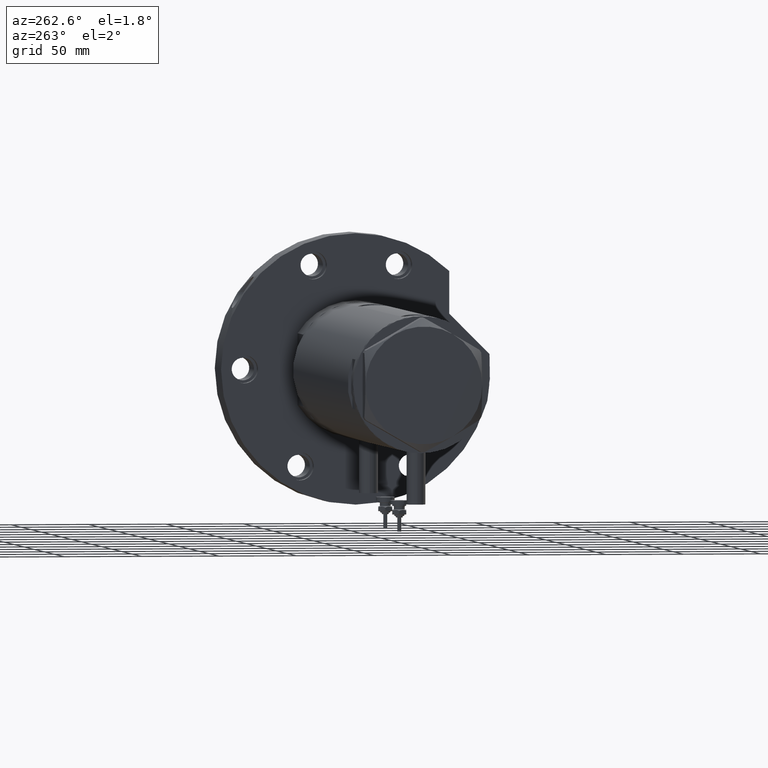
[diagram: clean part render]
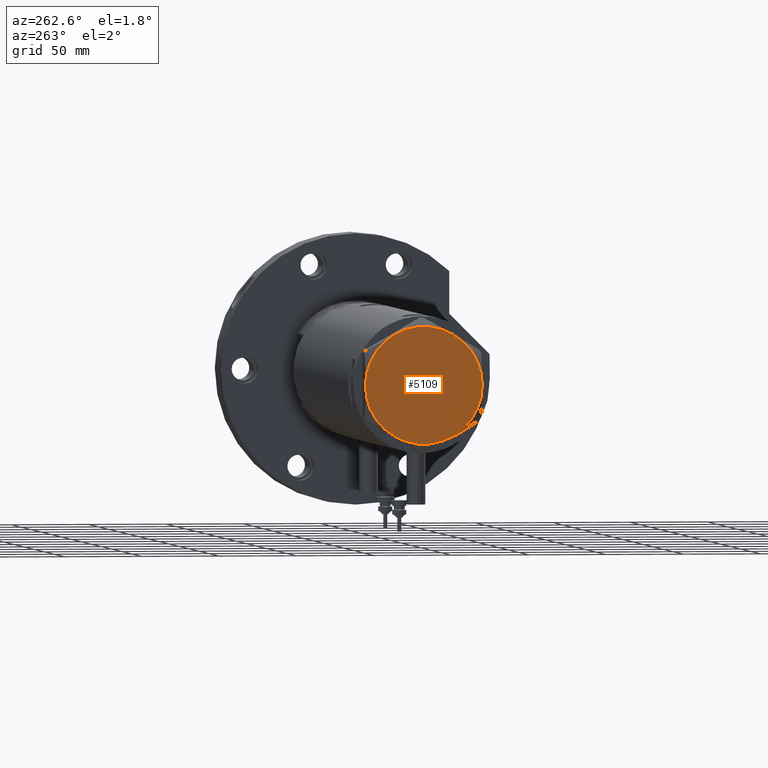
[diagram: same view with one face highlighted and labeled with its STEP entity id]
A machine part, auxiliary view. The second image highlights one B-rep face of the part: STEP entity #5109.
In plain terms, the highlighted planar face has unit normal (-1, -0, 0).
Its self-contained STEP definition (entity closure, byte-faithful):
#44 = CARTESIAN_POINT ( 'NONE',  ( 0.000000000000000000, 0.000000000000000000, 13.00000000000000000 ) ) ;
#85 = ORIENTED_EDGE ( 'NONE', *, *, #904, .T. ) ;
#412 = AXIS2_PLACEMENT_3D ( 'NONE', #3763, #6800, #5639 ) ;
#615 = DIRECTION ( 'NONE',  ( 0.000000000000000000, 0.000000000000000000, 1.000000000000000000 ) ) ;
#691 = CIRCLE ( 'NONE', #2506, 37.75000000000000000 ) ;
#904 = EDGE_CURVE ( 'NONE', #3430, #4030, #3561, .T. ) ;
#1025 = EDGE_CURVE ( 'NONE', #5015, #6463, #5514, .T. ) ;
#1065 = DIRECTION ( 'NONE',  ( 1.000000000000000000, 0.000000000000000000, 0.000000000000000000 ) ) ;
#1097 = DIRECTION ( 'NONE',  ( 1.000000000000000000, 0.000000000000000000, -0.000000000000000000 ) ) ;
#1230 = ORIENTED_EDGE ( 'NONE', *, *, #1841, .T. ) ;
#1372 = EDGE_CURVE ( 'NONE', #6319, #3430, #3817, .T. ) ;
#1614 = AXIS2_PLACEMENT_3D ( 'NONE', #4009, #5819, #3543 ) ;
#1658 = ORIENTED_EDGE ( 'NONE', *, *, #3451, .T. ) ;
#1713 = VERTEX_POINT ( 'NONE', #5579 ) ;
#1760 = DIRECTION ( 'NONE',  ( 1.000000000000000000, 0.000000000000000000, 0.000000000000000000 ) ) ;
#1782 = PLANE ( 'NONE',  #1890 ) ;
#1841 = EDGE_CURVE ( 'NONE', #1713, #6319, #7502, .T. ) ;
#1890 = AXIS2_PLACEMENT_3D ( 'NONE', #4102, #5323, #1097 ) ;
#2166 = DIRECTION ( 'NONE',  ( 1.000000000000000000, 0.000000000000000000, 0.000000000000000000 ) ) ;
#2435 = DIRECTION ( 'NONE',  ( 0.000000000000000000, 0.000000000000000000, 1.000000000000000000 ) ) ;
#2506 = AXIS2_PLACEMENT_3D ( 'NONE', #3424, #2809, #1065 ) ;
#2809 = DIRECTION ( 'NONE',  ( 0.000000000000000000, 0.000000000000000000, 1.000000000000000000 ) ) ;
#2959 = DIRECTION ( 'NONE',  ( 1.000000000000000000, 0.000000000000000000, 0.000000000000000000 ) ) ;
#3424 = CARTESIAN_POINT ( 'NONE',  ( 0.000000000000000000, 0.000000000000000000, 13.00000000000000000 ) ) ;
#3430 = VERTEX_POINT ( 'NONE', #6227 ) ;
#3451 = EDGE_CURVE ( 'NONE', #4030, #5015, #5656, .T. ) ;
#3543 = DIRECTION ( 'NONE',  ( 1.000000000000000000, 0.000000000000000000, 0.000000000000000000 ) ) ;
#3561 = CIRCLE ( 'NONE', #1614, 37.75000000000000000 ) ;
#3572 = AXIS2_PLACEMENT_3D ( 'NONE', #3960, #6266, #2166 ) ;
#3763 = CARTESIAN_POINT ( 'NONE',  ( 0.000000000000000000, 0.000000000000000000, 13.00000000000000000 ) ) ;
#3817 = CIRCLE ( 'NONE', #412, 37.75000000000000000 ) ;
#3960 = CARTESIAN_POINT ( 'NONE',  ( 0.000000000000000000, 0.000000000000000000, 13.00000000000000000 ) ) ;
#4009 = CARTESIAN_POINT ( 'NONE',  ( 0.000000000000000000, 0.000000000000000000, 13.00000000000000000 ) ) ;
#4030 = VERTEX_POINT ( 'NONE', #4269 ) ;
#4102 = CARTESIAN_POINT ( 'NONE',  ( 0.000000000000000000, 0.000000000000000000, 13.00000000000000000 ) ) ;
#4269 = CARTESIAN_POINT ( 'NONE',  ( 18.87499999999998579, -32.69245899286256218, 13.00000000000000000 ) ) ;
#4364 = CARTESIAN_POINT ( 'NONE',  ( 18.87500000000000000, 32.69245899286255508, 13.00000000000000000 ) ) ;
#4415 = AXIS2_PLACEMENT_3D ( 'NONE', #44, #615, #2959 ) ;
#4518 = CARTESIAN_POINT ( 'NONE',  ( -37.75000000000000000, -1.201851678989727067E-14, 13.00000000000000000 ) ) ;
#5015 = VERTEX_POINT ( 'NONE', #6020 ) ;
#5109 = ADVANCED_FACE ( 'NONE', ( #5241 ), #1782, .T. ) ;
#5241 = FACE_OUTER_BOUND ( 'NONE', #6087, .T. ) ;
#5257 = AXIS2_PLACEMENT_3D ( 'NONE', #5786, #2435, #1760 ) ;
#5323 = DIRECTION ( 'NONE',  ( 0.000000000000000000, 0.000000000000000000, 1.000000000000000000 ) ) ;
#5514 = CIRCLE ( 'NONE', #5257, 37.75000000000000000 ) ;
#5579 = CARTESIAN_POINT ( 'NONE',  ( -18.87499999999999645, 32.69245899286256218, 13.00000000000000000 ) ) ;
#5639 = DIRECTION ( 'NONE',  ( 1.000000000000000000, 0.000000000000000000, 0.000000000000000000 ) ) ;
#5656 = CIRCLE ( 'NONE', #3572, 37.75000000000000000 ) ;
#5685 = ORIENTED_EDGE ( 'NONE', *, *, #6202, .T. ) ;
#5772 = ORIENTED_EDGE ( 'NONE', *, *, #1372, .T. ) ;
#5786 = CARTESIAN_POINT ( 'NONE',  ( 0.000000000000000000, 0.000000000000000000, 13.00000000000000000 ) ) ;
#5819 = DIRECTION ( 'NONE',  ( 0.000000000000000000, 0.000000000000000000, 1.000000000000000000 ) ) ;
#6020 = CARTESIAN_POINT ( 'NONE',  ( 37.75000000000000711, 1.802777518484591547E-14, 13.00000000000000000 ) ) ;
#6087 = EDGE_LOOP ( 'NONE', ( #1658, #7467, #5685, #1230, #5772, #85 ) ) ;
#6202 = EDGE_CURVE ( 'NONE', #6463, #1713, #691, .T. ) ;
#6227 = CARTESIAN_POINT ( 'NONE',  ( -18.87499999999999645, -32.69245899286255508, 13.00000000000000000 ) ) ;
#6266 = DIRECTION ( 'NONE',  ( 0.000000000000000000, 0.000000000000000000, 1.000000000000000000 ) ) ;
#6319 = VERTEX_POINT ( 'NONE', #4518 ) ;
#6463 = VERTEX_POINT ( 'NONE', #4364 ) ;
#6800 = DIRECTION ( 'NONE',  ( 0.000000000000000000, 0.000000000000000000, 1.000000000000000000 ) ) ;
#7467 = ORIENTED_EDGE ( 'NONE', *, *, #1025, .T. ) ;
#7502 = CIRCLE ( 'NONE', #4415, 37.75000000000000000 ) ;